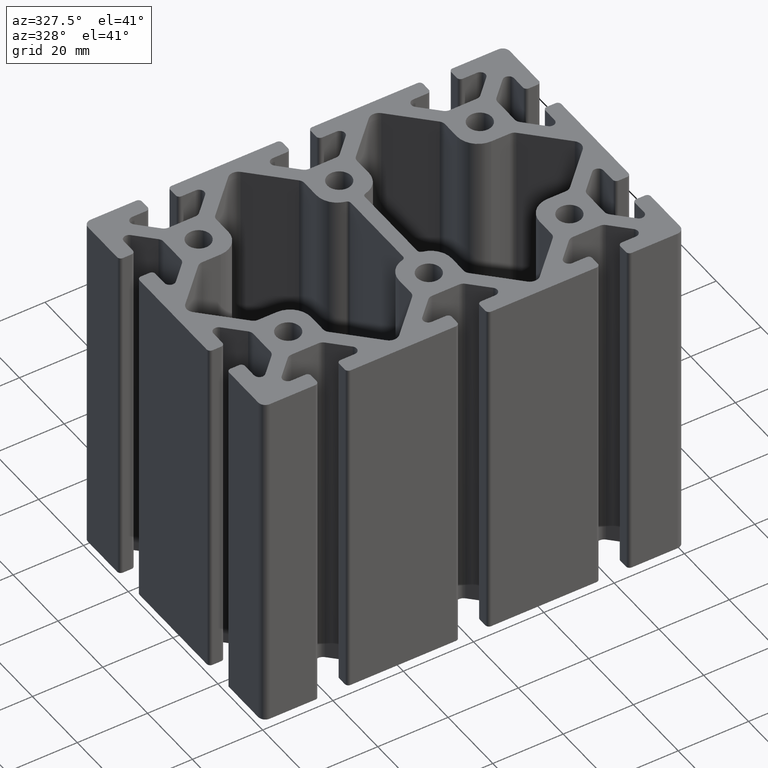
[diagram: clean part render]
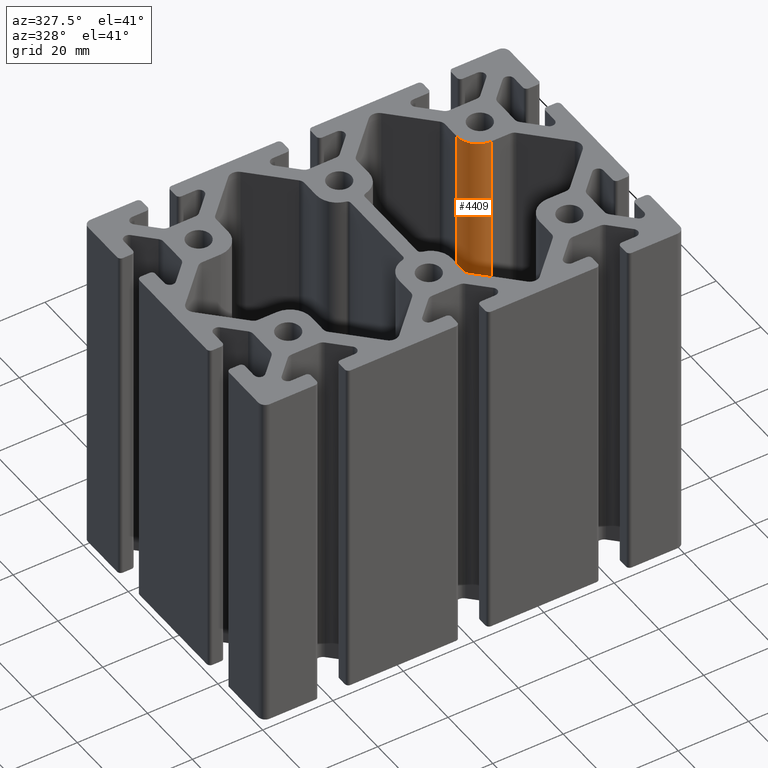
[diagram: same view with one face highlighted and labeled with its STEP entity id]
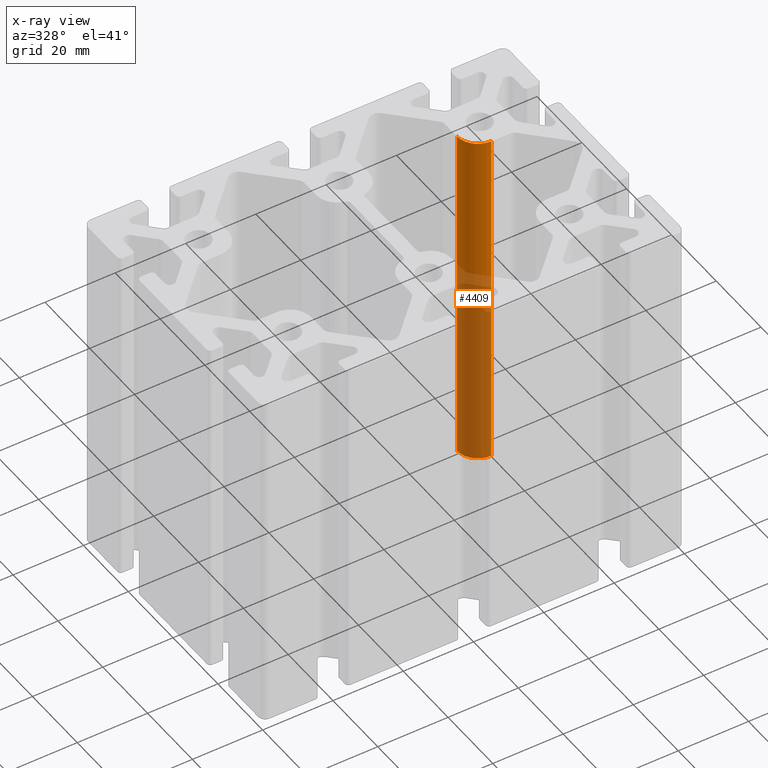
[diagram: x-ray of the same camera — body ghosted, the highlighted face saturated]
A machine part, auxiliary view. The second image highlights one B-rep face of the part: STEP entity #4409.
The next image is the same camera in x-ray: the body ghosted, the highlighted face saturated — about 58% of this face is hidden behind the body in this view.
In plain terms, the highlighted cylindrical surface (edge-blend (fillet) strip) has radius 6 mm, axis along (0, 0, 1).
Its self-contained STEP definition (entity closure, byte-faithful):
#163=FACE_OUTER_BOUND('',#395,.T.);
#395=EDGE_LOOP('',(#2963,#2964,#2965,#2966));
#661=LINE('',#6578,#1105);
#662=LINE('',#6584,#1106);
#1105=VECTOR('',#5189,100.);
#1106=VECTOR('',#5196,100.);
#1539=CIRCLE('',#4660,6.);
#1540=CIRCLE('',#4661,6.);
#1791=VERTEX_POINT('',#6574);
#1792=VERTEX_POINT('',#6576);
#1793=VERTEX_POINT('',#6580);
#1794=VERTEX_POINT('',#6582);
#2265=EDGE_CURVE('',#1792,#1791,#661,.T.);
#2266=EDGE_CURVE('',#1791,#1793,#1539,.T.);
#2267=EDGE_CURVE('',#1794,#1792,#1540,.T.);
#2268=EDGE_CURVE('',#1794,#1793,#662,.T.);
#2963=ORIENTED_EDGE('',*,*,#2266,.F.);
#2964=ORIENTED_EDGE('',*,*,#2265,.F.);
#2965=ORIENTED_EDGE('',*,*,#2267,.F.);
#2966=ORIENTED_EDGE('',*,*,#2268,.T.);
#4283=CYLINDRICAL_SURFACE('',#4659,6.);
#4409=ADVANCED_FACE('',(#163),#4283,.T.);
#4659=AXIS2_PLACEMENT_3D('',#6579,#5190,#5191);
#4660=AXIS2_PLACEMENT_3D('',#6581,#5192,#5193);
#4661=AXIS2_PLACEMENT_3D('',#6583,#5194,#5195);
#5189=DIRECTION('',(0.,0.,1.));
#5190=DIRECTION('center_axis',(0.,0.,1.));
#5191=DIRECTION('ref_axis',(-1.,0.,0.));
#5192=DIRECTION('center_axis',(0.,0.,1.));
#5193=DIRECTION('ref_axis',(-1.,0.,0.));
#5194=DIRECTION('center_axis',(0.,0.,-1.));
#5195=DIRECTION('ref_axis',(-1.,0.,0.));
#5196=DIRECTION('',(0.,0.,1.));
#6574=CARTESIAN_POINT('',(32.5000000000001,18.5,100.));
#6576=CARTESIAN_POINT('',(32.5000000000001,18.5,0.));
#6578=CARTESIAN_POINT('',(32.5000000000001,18.5,0.));
#6579=CARTESIAN_POINT('Origin',(38.5000000000001,18.5,0.));
#6580=CARTESIAN_POINT('',(38.5000000000001,12.5,100.));
#6581=CARTESIAN_POINT('Origin',(38.5000000000001,18.5,100.));
#6582=CARTESIAN_POINT('',(38.5000000000001,12.5,0.));
#6583=CARTESIAN_POINT('Origin',(38.5000000000001,18.5,0.));
#6584=CARTESIAN_POINT('',(38.5000000000001,12.5,0.));